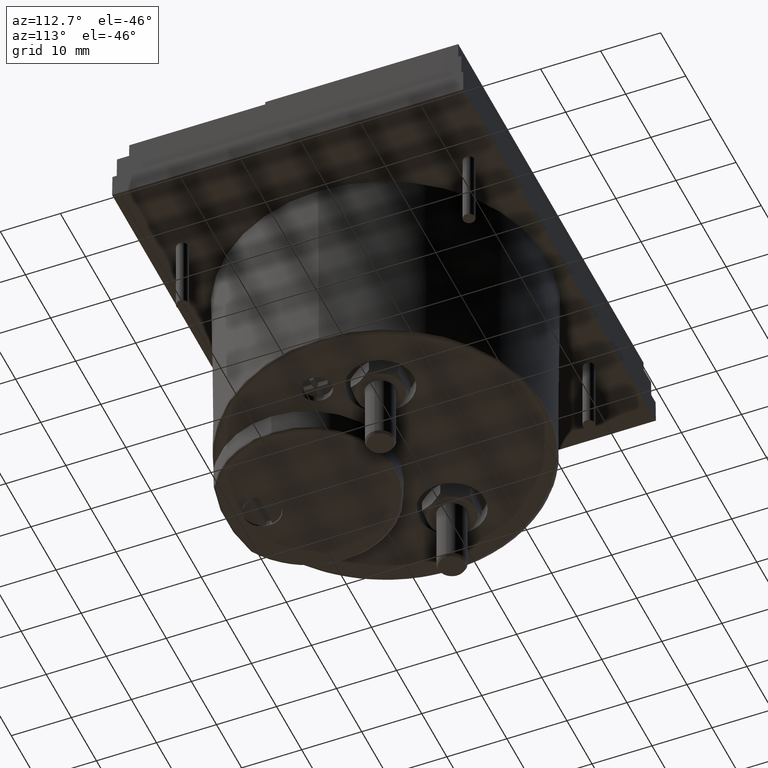
[diagram: clean part render]
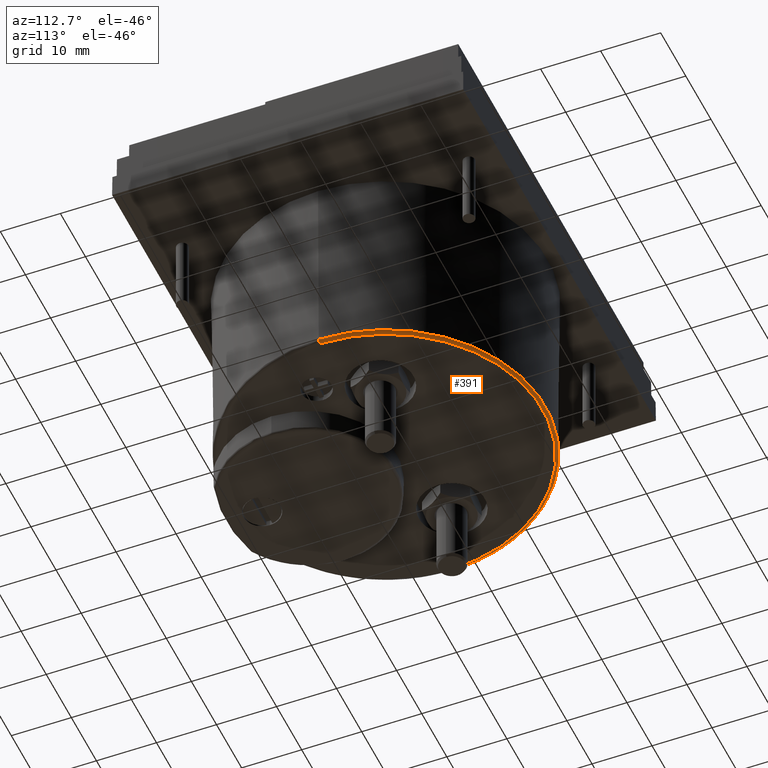
[diagram: same view with one face highlighted and labeled with its STEP entity id]
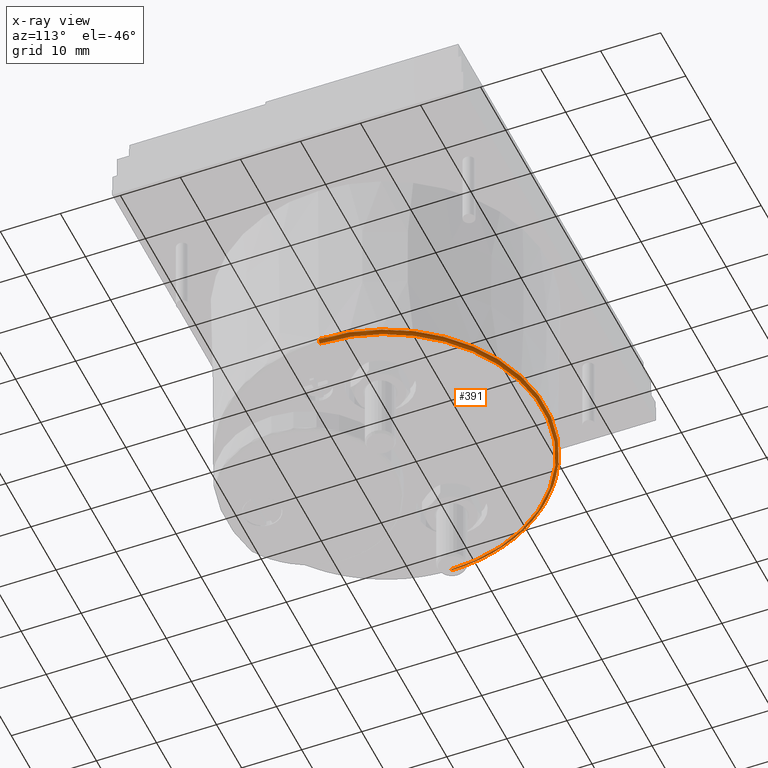
[diagram: x-ray of the same camera — body ghosted, the highlighted face saturated]
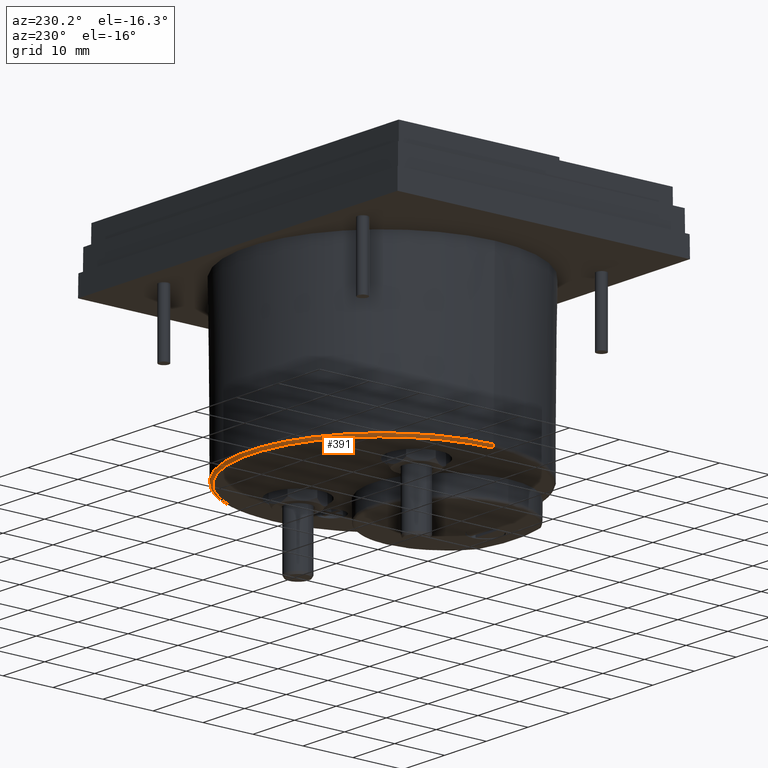
[diagram: same view with one face highlighted and labeled with its STEP entity id]
A machine part, auxiliary view. The second image highlights one B-rep face of the part: STEP entity #391.
The next image is the same camera in x-ray: the body ghosted, the highlighted face saturated — about 1% of this face is hidden behind the body in this view.
A second angle (auxiliary view) of the same face is appended — the face is thin or edge-on in the first view.
In plain terms, the highlighted face is a freeform B-spline surface patch.
Its self-contained STEP definition (entity closure, byte-faithful):
#145 = ORIENTED_EDGE ( 'NONE', *, *, #1248, .F. ) ;
#146 = CIRCLE ( 'NONE', #733, 0.01968503937007875723 ) ;
#195 = CARTESIAN_POINT ( 'NONE',  ( 1.029147943212891159, 2.874201398236803762, -1.572440944881889680 ) ) ;
#287 = CARTESIAN_POINT ( 'NONE',  ( 1.048732300252307459, 0.8159055118110236648, -1.564378850607621940 ) ) ;
#365 = CIRCLE ( 'NONE', #1904, 0.01968503937007875723 ) ;
#391 = ADVANCED_FACE ( 'NONE', ( #1014 ), #4464, .T. ) ;
#480 = ORIENTED_EDGE ( 'NONE', *, *, #2198, .T. ) ;
#652 = CARTESIAN_POINT ( 'NONE',  ( 1.048832233036992578, 0.8159055118110236648, -1.552927687706656901 ) ) ;
#733 = AXIS2_PLACEMENT_3D ( 'NONE', #2849, #5212, #5114 ) ;
#837 = ORIENTED_EDGE ( 'NONE', *, *, #4883, .F. ) ;
#925 = CARTESIAN_POINT ( 'NONE',  ( -1.029147943212892935, 0.8159055118110237759, -1.552755905511810974 ) ) ;
#986 = DIRECTION ( 'NONE',  ( -1.224646799147353207E-16, -1.000000000000000000, 0.000000000000000000 ) ) ;
#1014 = FACE_OUTER_BOUND ( 'NONE', #5024, .T. ) ;
#1248 = EDGE_CURVE ( 'NONE', #2455, #2349, #5155, .T. ) ;
#1649 = EDGE_CURVE ( 'NONE', #2455, #1660, #146, .T. ) ;
#1660 = VERTEX_POINT ( 'NONE', #1975 ) ;
#1904 = AXIS2_PLACEMENT_3D ( 'NONE', #925, #986, #2777 ) ;
#1975 = CARTESIAN_POINT ( 'NONE',  ( 1.029148020633422256, 0.8159055118183087263, -1.572440944881889680 ) ) ;
#2198 = EDGE_CURVE ( 'NONE', #1660, #2956, #4276, .T. ) ;
#2349 = VERTEX_POINT ( 'NONE', #5247 ) ;
#2455 = VERTEX_POINT ( 'NONE', #5890 ) ;
#2471 = CARTESIAN_POINT ( 'NONE',  ( 8.195543980992795572E-16, 0.8159055118110236648, -1.552927687706768367 ) ) ;
#2527 = CARTESIAN_POINT ( 'NONE',  ( -1.040599542155652424, 0.8159055118110237759, -1.572440944881891012 ) ) ;
#2555 = AXIS2_PLACEMENT_3D ( 'NONE', #2471, #4300, #3340 ) ;
#2777 = DIRECTION ( 'NONE',  ( -1.000000000000000000, 0.000000000000000000, 0.000000000000000000 ) ) ;
#2849 = CARTESIAN_POINT ( 'NONE',  ( 1.029147943212894489, 0.8159055118110236648, -1.552755905511810974 ) ) ;
#2941 = CARTESIAN_POINT ( 'NONE',  ( -1.029147943212889604, 0.8159055118110237759, -1.572440944881889680 ) ) ;
#2956 = VERTEX_POINT ( 'NONE', #3511 ) ;
#3031 = CARTESIAN_POINT ( 'NONE',  ( -1.048732300252305683, 2.913370112315636806, -1.564378850607621940 ) ) ;
#3068 = CARTESIAN_POINT ( 'NONE',  ( 1.040599542155654200, 2.897104596122330289, -1.572440944881891678 ) ) ;
#3340 = DIRECTION ( 'NONE',  ( -1.000000000000000000, 0.000000000000000000, -7.553504680715287121E-15 ) ) ;
#3398 = CARTESIAN_POINT ( 'NONE',  ( -1.048732300252306127, 0.8159055118110237759, -1.564378850607621940 ) ) ;
#3495 = ORIENTED_EDGE ( 'NONE', *, *, #1649, .T. ) ;
#3511 = CARTESIAN_POINT ( 'NONE',  ( -1.029148189749250708, 0.8159055118478393265, -1.572440944881889680 ) ) ;
#3849 = CARTESIAN_POINT ( 'NONE',  ( -1.048832233036990580, 2.913569977885006601, -1.552927687706656901 ) ) ;
#3877 = CARTESIAN_POINT ( 'NONE',  ( -1.029147943212889160, 2.874201398236803762, -1.572440944881889680 ) ) ;
#3904 = CARTESIAN_POINT ( 'NONE',  ( 1.029147943212891159, 0.8159055118110236648, -1.572440944881889680 ) ) ;
#4014 = CARTESIAN_POINT ( 'NONE',  ( -1.029147943176074387, 2.874201398211111869, -1.572440944881889902 ) ) ;
#4276 =( BOUNDED_CURVE ( )  B_SPLINE_CURVE ( 3, ( #4986, #5871, #4014, #4529 ),
 .UNSPECIFIED., .F., .T. ) 
 B_SPLINE_CURVE_WITH_KNOTS ( ( 4, 4 ),
 ( 0.2186841058652372327, 0.7813158941321930451 ),
 .UNSPECIFIED. ) 
 CURVE ( )  GEOMETRIC_REPRESENTATION_ITEM ( )  RATIONAL_B_SPLINE_CURVE ( ( 1.000000000000000000, 0.3333333333404752130, 0.3333333333404752130, 1.000000000000000000 ) ) 
 REPRESENTATION_ITEM ( '' )  );
#4300 = DIRECTION ( 'NONE',  ( 0.000000000000000000, 0.000000000000000000, 1.000000000000000000 ) ) ;
#4384 = CARTESIAN_POINT ( 'NONE',  ( -1.048832233036990802, 0.8159055118110237759, -1.552927687706656901 ) ) ;
#4418 = CARTESIAN_POINT ( 'NONE',  ( 1.048832233036992356, 2.913569977885006157, -1.552927687706656901 ) ) ;
#4464 =( BOUNDED_SURFACE ( )  B_SPLINE_SURFACE ( 3, 3, ( 
 ( #652, #4418, #3849, #4384 ),
 ( #287, #5819, #3031, #3398 ),
 ( #4869, #3068, #5728, #2527 ),
 ( #3904, #195, #3877, #2941 ) ),
 .UNSPECIFIED., .F., .F., .T. ) 
 B_SPLINE_SURFACE_WITH_KNOTS ( ( 4, 4 ),
 ( 4, 4 ),
 ( 0.000000000000000000, 1.000000000000000000 ),
 ( 0.000000000000000000, 1.000000000000000000 ),
 .UNSPECIFIED. ) 
 GEOMETRIC_REPRESENTATION_ITEM ( )  RATIONAL_B_SPLINE_SURFACE ( (
 ( 1.000000000000000000, 0.3333333333333334259, 0.3333333333333334259, 1.000000000000000000),
 ( 0.8067902504154359500, 0.2689300834718120758, 0.2689300834718120758, 0.8067902504154359500),
 ( 0.8067902504154359500, 0.2689300834718120758, 0.2689300834718120758, 0.8067902504154359500),
 ( 1.000000000000000000, 0.3333333333333334259, 0.3333333333333334259, 1.000000000000000000) ) ) 
 REPRESENTATION_ITEM ( '' )  SURFACE ( )  );
#4529 = CARTESIAN_POINT ( 'NONE',  ( -1.029148189749250708, 0.8159055118478393265, -1.572440944881889680 ) ) ;
#4869 = CARTESIAN_POINT ( 'NONE',  ( 1.040599542155654200, 0.8159055118110236648, -1.572440944881891012 ) ) ;
#4883 = EDGE_CURVE ( 'NONE', #2349, #2956, #365, .T. ) ;
#4986 = CARTESIAN_POINT ( 'NONE',  ( 1.029148020633422256, 0.8159055118183087263, -1.572440944881889680 ) ) ;
#5024 = EDGE_LOOP ( 'NONE', ( #837, #145, #3495, #480 ) ) ;
#5114 = DIRECTION ( 'NONE',  ( 1.000000000000000000, 0.000000000000000000, 0.000000000000000000 ) ) ;
#5155 = CIRCLE ( 'NONE', #2555, 1.048832233049751261 ) ;
#5212 = DIRECTION ( 'NONE',  ( 0.000000000000000000, 1.000000000000000000, 0.000000000000000000 ) ) ;
#5247 = CARTESIAN_POINT ( 'NONE',  ( -1.048832233049750373, 0.8159055118110237759, -1.552927687706768367 ) ) ;
#5728 = CARTESIAN_POINT ( 'NONE',  ( -1.040599542155652424, 2.897104596122330289, -1.572440944881891678 ) ) ;
#5819 = CARTESIAN_POINT ( 'NONE',  ( 1.048732300252307681, 2.913370112315636806, -1.564378850607621940 ) ) ;
#5871 = CARTESIAN_POINT ( 'NONE',  ( 1.029147943205606097, 2.874201398196346791, -1.572440944881889902 ) ) ;
#5890 = CARTESIAN_POINT ( 'NONE',  ( 1.048832233049751927, 0.8159055118110236648, -1.552927687706768367 ) ) ;